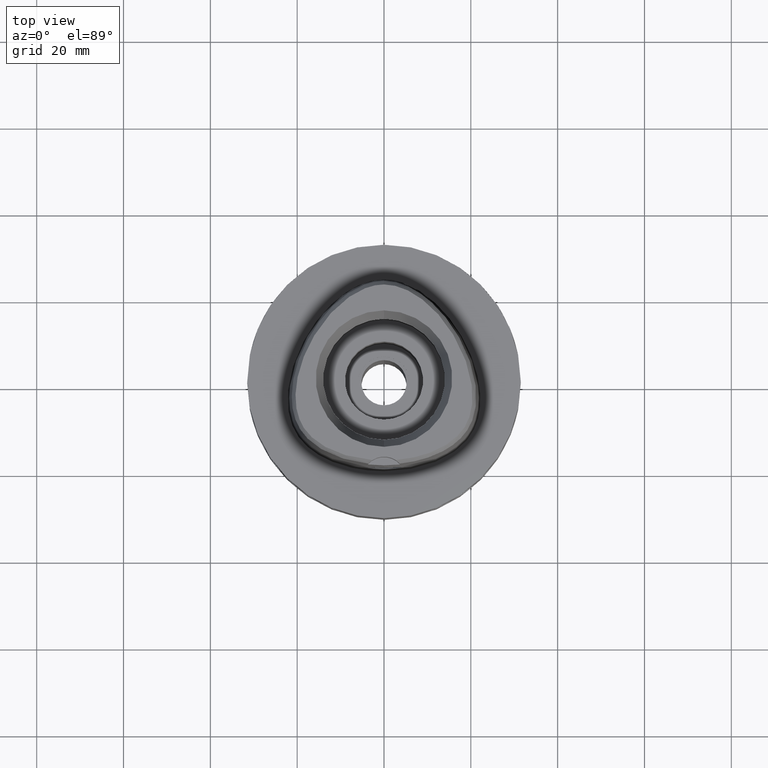
[diagram: clean part render]
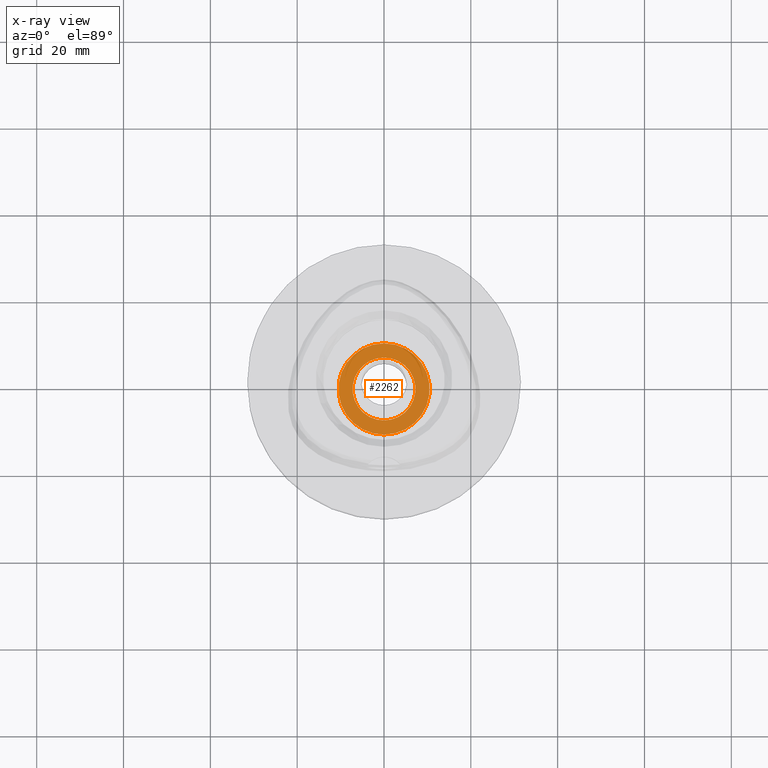
[diagram: x-ray — body ghosted, one internal face saturated and labeled with its STEP entity id]
A machine part, top view, then the same camera in x-ray: the body is ghosted and one INTERNAL B-rep face — a face not visible from any outside direction — is saturated and labeled: STEP entity #2262.
In plain terms, the highlighted planar face has unit normal (0, 0, -1).
Its self-contained STEP definition (entity closure, byte-faithful):
#31 = ORIENTED_EDGE ( 'NONE', *, *, #1646, .F. ) ;
#432 = AXIS2_PLACEMENT_3D ( 'NONE', #4518, #4183, #775 ) ;
#584 = AXIS2_PLACEMENT_3D ( 'NONE', #1413, #5267, #4058 ) ;
#686 = EDGE_CURVE ( 'NONE', #1938, #3588, #1603, .T. ) ;
#706 = AXIS2_PLACEMENT_3D ( 'NONE', #2510, #5484, #4226 ) ;
#775 = DIRECTION ( 'NONE',  ( 0.0000000000000000000, 1.000000000000000000, 0.0000000000000000000 ) ) ;
#785 = CARTESIAN_POINT ( 'NONE',  ( 0.0000000000000000000, 7.250000000000000000, -8.200000000000001066 ) ) ;
#1129 = CARTESIAN_POINT ( 'NONE',  ( 0.0000000000000000000, -10.50000000000000000, -8.200000000000001066 ) ) ;
#1413 = CARTESIAN_POINT ( 'NONE',  ( 0.0000000000000000000, 0.0000000000000000000, -8.200000000000001066 ) ) ;
#1543 = FACE_BOUND ( 'NONE', #5183, .T. ) ;
#1603 = CIRCLE ( 'NONE', #706, 10.50000000000000000 ) ;
#1646 = EDGE_CURVE ( 'NONE', #3186, #2576, #3942, .T. ) ;
#1825 = ORIENTED_EDGE ( 'NONE', *, *, #4529, .F. ) ;
#1894 = ORIENTED_EDGE ( 'NONE', *, *, #5014, .F. ) ;
#1938 = VERTEX_POINT ( 'NONE', #5351 ) ;
#1989 = PLANE ( 'NONE',  #4033 ) ;
#2076 = CARTESIAN_POINT ( 'NONE',  ( 0.0000000000000000000, 0.0000000000000000000, -8.200000000000001066 ) ) ;
#2262 = ADVANCED_FACE ( 'NONE', ( #3648, #1543 ), #1989, .F. ) ;
#2334 = ORIENTED_EDGE ( 'NONE', *, *, #686, .F. ) ;
#2450 = DIRECTION ( 'NONE',  ( 0.0000000000000000000, -1.000000000000000000, 0.0000000000000000000 ) ) ;
#2510 = CARTESIAN_POINT ( 'NONE',  ( 0.0000000000000000000, 0.0000000000000000000, -8.200000000000001066 ) ) ;
#2576 = VERTEX_POINT ( 'NONE', #3303 ) ;
#2592 = DIRECTION ( 'NONE',  ( 0.0000000000000000000, 0.0000000000000000000, 1.000000000000000000 ) ) ;
#3013 = CIRCLE ( 'NONE', #584, 10.50000000000000000 ) ;
#3186 = VERTEX_POINT ( 'NONE', #785 ) ;
#3303 = CARTESIAN_POINT ( 'NONE',  ( 0.0000000000000000000, -7.250000000000000000, -8.200000000000001066 ) ) ;
#3364 = CIRCLE ( 'NONE', #4271, 7.250000000000000000 ) ;
#3588 = VERTEX_POINT ( 'NONE', #1129 ) ;
#3648 = FACE_OUTER_BOUND ( 'NONE', #4418, .T. ) ;
#3942 = CIRCLE ( 'NONE', #432, 7.250000000000000000 ) ;
#4033 = AXIS2_PLACEMENT_3D ( 'NONE', #4559, #4191, #2450 ) ;
#4058 = DIRECTION ( 'NONE',  ( 0.0000000000000000000, -1.000000000000000000, 0.0000000000000000000 ) ) ;
#4183 = DIRECTION ( 'NONE',  ( 0.0000000000000000000, 0.0000000000000000000, 1.000000000000000000 ) ) ;
#4191 = DIRECTION ( 'NONE',  ( 0.0000000000000000000, 0.0000000000000000000, -1.000000000000000000 ) ) ;
#4226 = DIRECTION ( 'NONE',  ( 0.0000000000000000000, 1.000000000000000000, 0.0000000000000000000 ) ) ;
#4271 = AXIS2_PLACEMENT_3D ( 'NONE', #2076, #2592, #4651 ) ;
#4418 = EDGE_LOOP ( 'NONE', ( #2334, #1825 ) ) ;
#4518 = CARTESIAN_POINT ( 'NONE',  ( 0.0000000000000000000, 0.0000000000000000000, -8.200000000000001066 ) ) ;
#4529 = EDGE_CURVE ( 'NONE', #3588, #1938, #3013, .T. ) ;
#4559 = CARTESIAN_POINT ( 'NONE',  ( 0.0000000000000000000, 0.0000000000000000000, -8.200000000000001066 ) ) ;
#4651 = DIRECTION ( 'NONE',  ( 0.0000000000000000000, -1.000000000000000000, 0.0000000000000000000 ) ) ;
#5014 = EDGE_CURVE ( 'NONE', #2576, #3186, #3364, .T. ) ;
#5183 = EDGE_LOOP ( 'NONE', ( #31, #1894 ) ) ;
#5267 = DIRECTION ( 'NONE',  ( 0.0000000000000000000, 0.0000000000000000000, -1.000000000000000000 ) ) ;
#5351 = CARTESIAN_POINT ( 'NONE',  ( 0.0000000000000000000, 10.50000000000000000, -8.200000000000001066 ) ) ;
#5484 = DIRECTION ( 'NONE',  ( 0.0000000000000000000, 0.0000000000000000000, -1.000000000000000000 ) ) ;